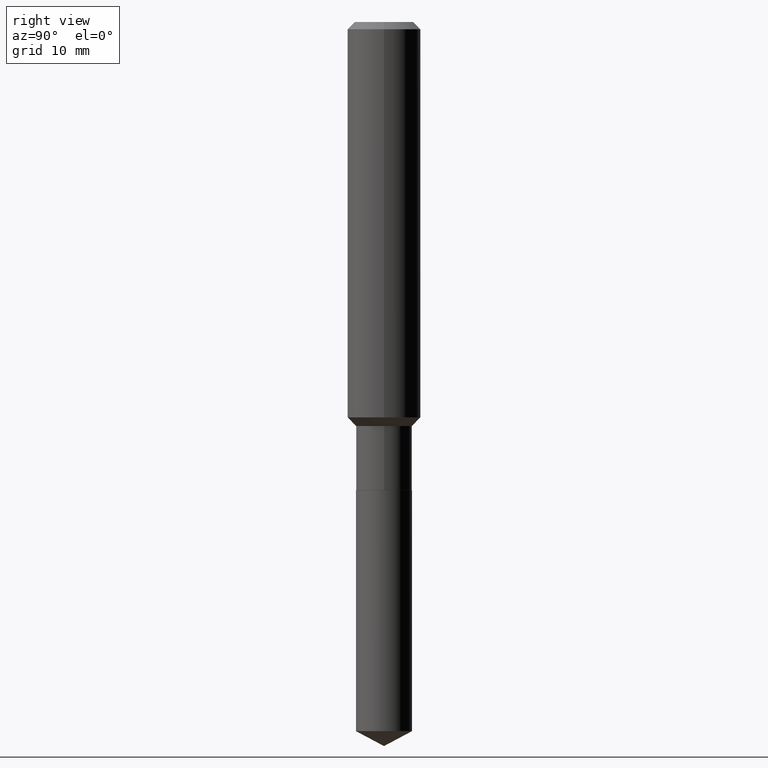
[diagram: clean part render]
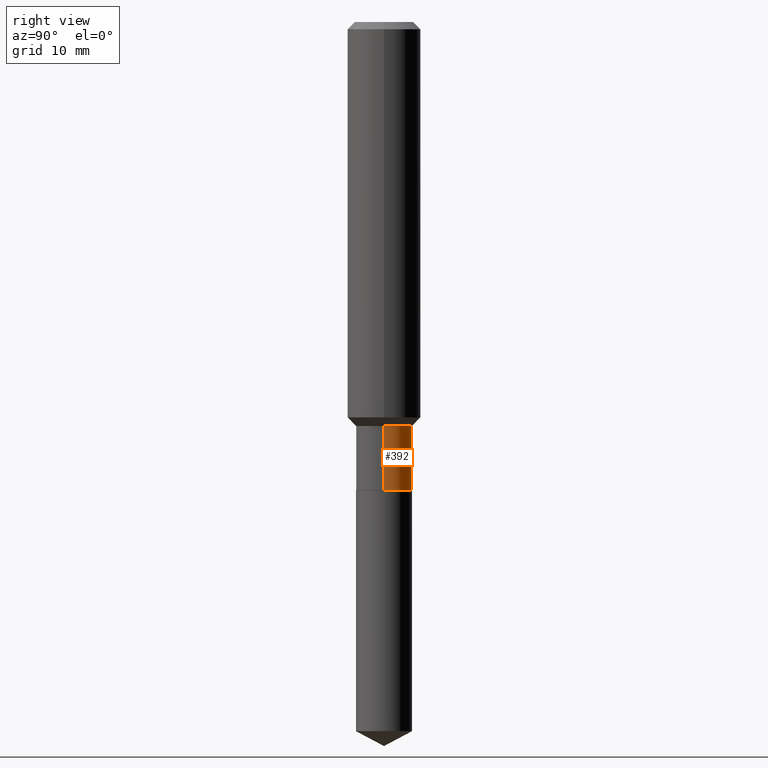
[diagram: same view with one face highlighted and labeled with its STEP entity id]
A machine part, right view. The second image highlights one B-rep face of the part: STEP entity #392.
In plain terms, the highlighted cylindrical surface (edge-blend (fillet) strip) has radius 3.0505 mm, axis along (-0, 0, 1).
Its self-contained STEP definition (entity closure, byte-faithful):
#14 = DIRECTION ( 'NONE',  ( 1.000000000000000000, -6.982962677686265922E-15, 0.000000000000000000 ) ) ;
#44 = VECTOR ( 'NONE', #164, 39.37007874015748143 ) ;
#59 = CARTESIAN_POINT ( 'NONE',  ( 0.1201000000000000401, -7.861070234405340592E-15, -2.011300000000000310 ) ) ;
#72 = CARTESIAN_POINT ( 'NONE',  ( 4.918571409880165574E-29, -7.022416416815219512E-15, -2.011300000000000310 ) ) ;
#76 = CARTESIAN_POINT ( 'NONE',  ( -0.1201000000000000539, -5.687753888607810649E-15, -2.011300000000000310 ) ) ;
#84 = ORIENTED_EDGE ( 'NONE', *, *, #137, .F. ) ;
#123 = DIRECTION ( 'NONE',  ( 1.000000000000000000, -6.982962677686266711E-15, 4.876176775795935232E-29 ) ) ;
#128 = EDGE_CURVE ( 'NONE', #214, #425, #200, .T. ) ;
#133 = VERTEX_POINT ( 'NONE', #204 ) ;
#137 = EDGE_CURVE ( 'NONE', #425, #133, #361, .T. ) ;
#164 = DIRECTION ( 'NONE',  ( -2.445468806185136877E-29, 3.491481338843145188E-15, 1.000000000000000000 ) ) ;
#172 = ORIENTED_EDGE ( 'NONE', *, *, #186, .T. ) ;
#174 = DIRECTION ( 'NONE',  ( -2.445468806185136597E-29, 3.491481338843145583E-15, 1.000000000000000000 ) ) ;
#183 = CARTESIAN_POINT ( 'NONE',  ( 4.244355660014922752E-29, -6.059815011696163002E-15, -1.735600000000000032 ) ) ;
#186 = EDGE_CURVE ( 'NONE', #292, #133, #475, .T. ) ;
#199 = CARTESIAN_POINT ( 'NONE',  ( 0.1200999999999999984, -6.898468829286284082E-15, -1.735600000000000032 ) ) ;
#200 = LINE ( 'NONE', #344, #44 ) ;
#204 = CARTESIAN_POINT ( 'NONE',  ( -0.1200999999999999984, -5.687753888607810649E-15, -1.735600000000000032 ) ) ;
#214 = VERTEX_POINT ( 'NONE', #59 ) ;
#221 = DIRECTION ( 'NONE',  ( -2.445468806185136877E-29, 3.491481338843145188E-15, 1.000000000000000000 ) ) ;
#229 = DIRECTION ( 'NONE',  ( -2.445468806185136597E-29, 3.491481338843145583E-15, 1.000000000000000000 ) ) ;
#230 = FACE_OUTER_BOUND ( 'NONE', #326, .T. ) ;
#260 = AXIS2_PLACEMENT_3D ( 'NONE', #183, #174, #14 ) ;
#283 = EDGE_CURVE ( 'NONE', #214, #292, #384, .T. ) ;
#292 = VERTEX_POINT ( 'NONE', #76 ) ;
#304 = CARTESIAN_POINT ( 'NONE',  ( 0.000000000000000000, 0.000000000000000000, 0.000000000000000000 ) ) ;
#326 = EDGE_LOOP ( 'NONE', ( #434, #172, #84, #432 ) ) ;
#334 = CYLINDRICAL_SURFACE ( 'NONE', #411, 0.1201000000000000262 ) ;
#335 = DIRECTION ( 'NONE',  ( 1.000000000000000000, -6.982962677686263555E-15, 0.000000000000000000 ) ) ;
#344 = CARTESIAN_POINT ( 'NONE',  ( 0.1201000000000000262, -8.386538175901207842E-16, 5.856288307730919352E-30 ) ) ;
#361 = CIRCLE ( 'NONE', #260, 0.1200999999999999984 ) ;
#384 = CIRCLE ( 'NONE', #470, 0.1201000000000000401 ) ;
#392 = ADVANCED_FACE ( 'NONE', ( #230 ), #334, .T. ) ;
#396 = CARTESIAN_POINT ( 'NONE',  ( -0.1201000000000000262, 8.533618256478805092E-16, -5.907641043396142645E-30 ) ) ;
#411 = AXIS2_PLACEMENT_3D ( 'NONE', #304, #229, #123 ) ;
#412 = DIRECTION ( 'NONE',  ( -2.445468806185136597E-29, 3.491481338843145583E-15, 1.000000000000000000 ) ) ;
#425 = VERTEX_POINT ( 'NONE', #199 ) ;
#432 = ORIENTED_EDGE ( 'NONE', *, *, #128, .F. ) ;
#434 = ORIENTED_EDGE ( 'NONE', *, *, #283, .T. ) ;
#470 = AXIS2_PLACEMENT_3D ( 'NONE', #72, #412, #335 ) ;
#475 = LINE ( 'NONE', #396, #484 ) ;
#484 = VECTOR ( 'NONE', #221, 39.37007874015748143 ) ;